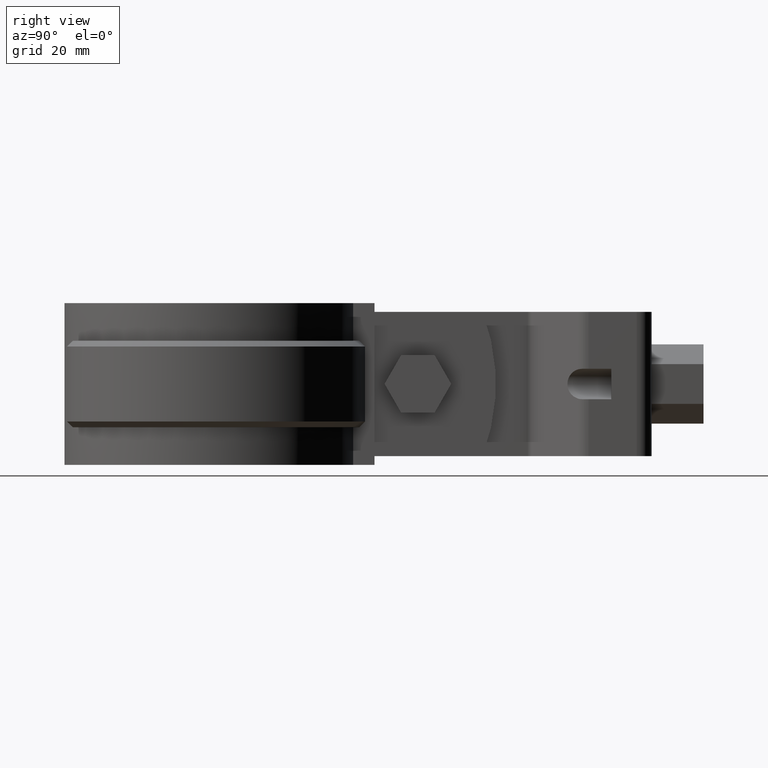
[diagram: clean part render]
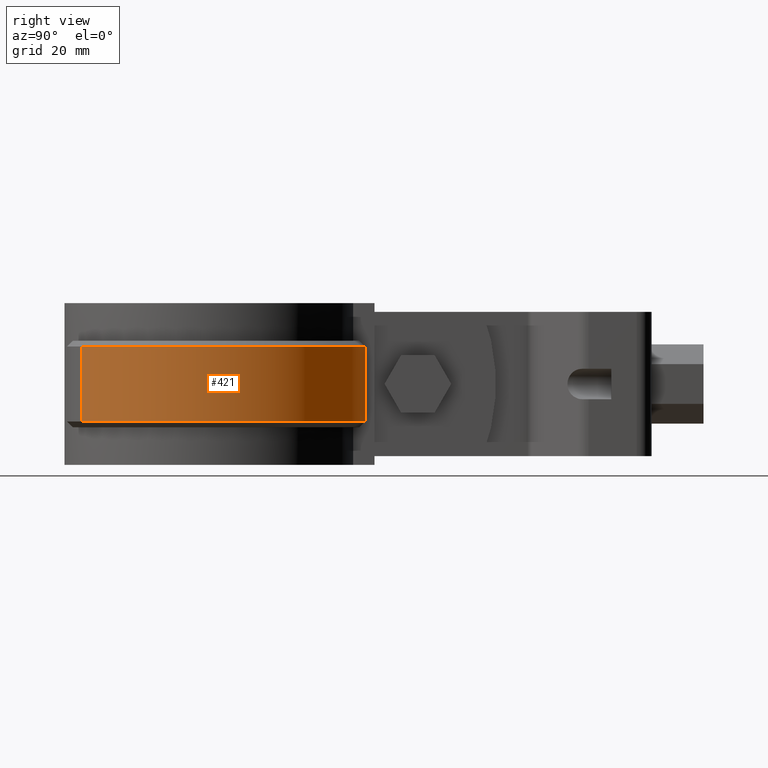
[diagram: same view with one face highlighted and labeled with its STEP entity id]
A machine part, right view. The second image highlights one B-rep face of the part: STEP entity #421.
In plain terms, the highlighted cylindrical surface (partial cylindrical patch) has radius 27.445 mm, axis along (0, 0, -1).
Its self-contained STEP definition (entity closure, byte-faithful):
#421 = ADVANCED_FACE( '', ( #780 ), #781, .T. );
#780 = FACE_OUTER_BOUND( '', #1666, .T. );
#781 = CYLINDRICAL_SURFACE( '', #1667, 27.4450000000000 );
#1666 = EDGE_LOOP( '', ( #4041, #4042, #4043, #4044 ) );
#1667 = AXIS2_PLACEMENT_3D( '', #4045, #4046, #4047 );
#4041 = ORIENTED_EDGE( '', *, *, #5541, .T. );
#4042 = ORIENTED_EDGE( '', *, *, #5568, .T. );
#4043 = ORIENTED_EDGE( '', *, *, #5569, .F. );
#4044 = ORIENTED_EDGE( '', *, *, #5566, .T. );
#4045 = CARTESIAN_POINT( '', ( -8.67361737988404E-016, -3.46944695195361E-015, -20.0000000000000 ) );
#4046 = DIRECTION( '', ( 0.000000000000000, 0.000000000000000, -1.00000000000000 ) );
#4047 = DIRECTION( '', ( 0.213196982952784, 0.977009235606210, 0.000000000000000 ) );
#5541 = EDGE_CURVE( '', #6436, #6434, #6437, .T. );
#5566 = EDGE_CURVE( '', #6461, #6436, #6474, .T. );
#5568 = EDGE_CURVE( '', #6434, #6390, #6476, .F. );
#5569 = EDGE_CURVE( '', #6461, #6390, #6477, .T. );
#6390 = VERTEX_POINT( '', #10014 );
#6434 = VERTEX_POINT( '', #10079 );
#6436 = VERTEX_POINT( '', #10084 );
#6437 = LINE( '', #10085, #10086 );
#6461 = VERTEX_POINT( '', #10127 );
#6474 = CIRCLE( '', #10146, 27.4450000000000 );
#6476 = CIRCLE( '', #10148, 27.4450000000000 );
#6477 = LINE( '', #10149, #10150 );
#10014 = CARTESIAN_POINT( '', ( 15.9691081303572, -22.3207439508848, -6.00000000000000 ) );
#10079 = CARTESIAN_POINT( '', ( 6.09999999999997, 26.7585131313382, -6.00000000000000 ) );
#10084 = CARTESIAN_POINT( '', ( 6.09999999999997, 26.7585131313382, -19.0000000000000 ) );
#10085 = CARTESIAN_POINT( '', ( 6.09999999999997, 26.7585131313382, -20.0000000000000 ) );
#10086 = VECTOR( '', #11181, 1000.00000000000 );
#10127 = CARTESIAN_POINT( '', ( 15.9691081303572, -22.3207439508848, -19.0000000000000 ) );
#10146 = AXIS2_PLACEMENT_3D( '', #11217, #11218, #11219 );
#10148 = AXIS2_PLACEMENT_3D( '', #11223, #11224, #11225 );
#10149 = CARTESIAN_POINT( '', ( 15.9691081303572, -22.3207439508848, -20.0000000000000 ) );
#10150 = VECTOR( '', #11226, 1000.00000000000 );
#11181 = DIRECTION( '', ( 0.000000000000000, 0.000000000000000, 1.00000000000000 ) );
#11217 = CARTESIAN_POINT( '', ( -8.67361737988404E-016, -3.46944695195361E-015, -19.0000000000000 ) );
#11218 = DIRECTION( '', ( 0.000000000000000, 0.000000000000000, 1.00000000000000 ) );
#11219 = DIRECTION( '', ( 1.00000000000000, 0.000000000000000, 0.000000000000000 ) );
#11223 = CARTESIAN_POINT( '', ( -8.67361737988404E-016, -3.46944695195361E-015, -6.00000000000000 ) );
#11224 = DIRECTION( '', ( 0.000000000000000, 0.000000000000000, 1.00000000000000 ) );
#11225 = DIRECTION( '', ( 1.00000000000000, 0.000000000000000, 0.000000000000000 ) );
#11226 = DIRECTION( '', ( 0.000000000000000, 0.000000000000000, 1.00000000000000 ) );